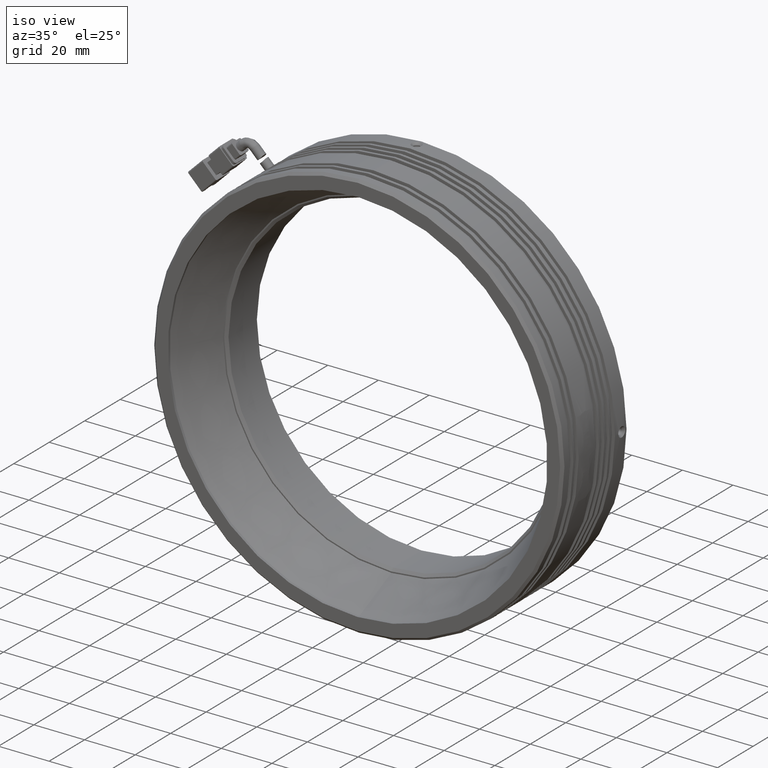
[diagram: clean part render]
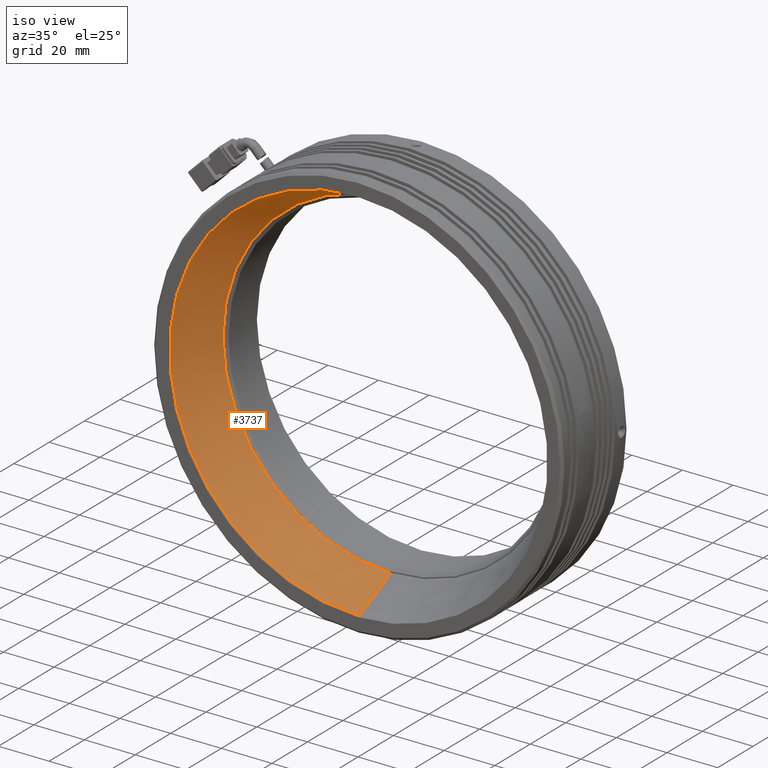
[diagram: same view with one face highlighted and labeled with its STEP entity id]
A machine part, iso view. The second image highlights one B-rep face of the part: STEP entity #3737.
In plain terms, the highlighted conical surface has half-angle 25.278 deg.
Its self-contained STEP definition (entity closure, byte-faithful):
#120 = CARTESIAN_POINT ( 'NONE',  ( -9.785022266880027100, -8.128885628159929800, 75.00000000000000000 ) ) ;
#1035 = ORIENTED_EDGE ( 'NONE', *, *, #9884, .T. ) ;
#1046 = EDGE_LOOP ( 'NONE', ( #6740, #1035, #10707, #8869 ) ) ;
#1540 = DIRECTION ( 'NONE',  ( 0.0000000000000000000, -1.000000000000000000, 0.0000000000000000000 ) ) ;
#2515 = CIRCLE ( 'NONE', #11000, 75.00000000000000000 ) ;
#2528 = DIRECTION ( 'NONE',  ( 0.0000000000000000000, -1.000000000000000000, 0.0000000000000000000 ) ) ;
#2910 = LINE ( 'NONE', #6521, #13234 ) ;
#3236 = DIRECTION ( 'NONE',  ( 5.229319051334347500E-017, -0.9042486467459910400, 0.4270063054078288600 ) ) ;
#3722 = EDGE_CURVE ( 'NONE', #13217, #4231, #2515, .T. ) ;
#3737 = ADVANCED_FACE ( 'NONE', ( #12215 ), #8202, .F. ) ;
#4155 = AXIS2_PLACEMENT_3D ( 'NONE', #5252, #12467, #6296 ) ;
#4231 = VERTEX_POINT ( 'NONE', #11056 ) ;
#4792 = CARTESIAN_POINT ( 'NONE',  ( -9.785022266880027100, 9.871114371840059600, 66.50000000000000000 ) ) ;
#5151 = LINE ( 'NONE', #120, #7596 ) ;
#5252 = CARTESIAN_POINT ( 'NONE',  ( -9.785022266880036000, 9.871114371840059600, 0.0000000000000000000 ) ) ;
#5483 = DIRECTION ( 'NONE',  ( 0.0000000000000000000, 0.0000000000000000000, -1.000000000000000000 ) ) ;
#6296 = DIRECTION ( 'NONE',  ( 0.0000000000000000000, 1.043442692316876500E-016, -1.000000000000000000 ) ) ;
#6521 = CARTESIAN_POINT ( 'NONE',  ( -9.785022266880036000, -8.128885628159929800, -75.00000000000000000 ) ) ;
#6740 = ORIENTED_EDGE ( 'NONE', *, *, #9851, .F. ) ;
#7577 = DIRECTION ( 'NONE',  ( 0.0000000000000000000, -0.9042486467459910400, -0.4270063054078288600 ) ) ;
#7596 = VECTOR ( 'NONE', #3236, 1000.000000000000000 ) ;
#7742 = CARTESIAN_POINT ( 'NONE',  ( -9.785022266880036000, -8.128885628159929800, 0.0000000000000000000 ) ) ;
#7787 = CARTESIAN_POINT ( 'NONE',  ( -9.785022266880036000, -8.128885628159929800, 0.0000000000000000000 ) ) ;
#8202 = CONICAL_SURFACE ( 'NONE', #10553, 75.00000000000000000, 0.4411794804149804500 ) ;
#8777 = DIRECTION ( 'NONE',  ( 0.0000000000000000000, 0.0000000000000000000, -1.000000000000000000 ) ) ;
#8869 = ORIENTED_EDGE ( 'NONE', *, *, #9949, .F. ) ;
#9851 = EDGE_CURVE ( 'NONE', #10713, #13320, #10650, .T. ) ;
#9884 = EDGE_CURVE ( 'NONE', #10713, #13217, #5151, .T. ) ;
#9949 = EDGE_CURVE ( 'NONE', #13320, #4231, #2910, .T. ) ;
#10553 = AXIS2_PLACEMENT_3D ( 'NONE', #7787, #2528, #5483 ) ;
#10650 = CIRCLE ( 'NONE', #4155, 66.50000000000000000 ) ;
#10707 = ORIENTED_EDGE ( 'NONE', *, *, #3722, .T. ) ;
#10713 = VERTEX_POINT ( 'NONE', #4792 ) ;
#11000 = AXIS2_PLACEMENT_3D ( 'NONE', #7742, #1540, #8777 ) ;
#11056 = CARTESIAN_POINT ( 'NONE',  ( -9.785022266880036000, -8.128885628159929800, -75.00000000000000000 ) ) ;
#11484 = CARTESIAN_POINT ( 'NONE',  ( -9.785022266880036000, 9.871114371840066700, -66.50000000000000000 ) ) ;
#12215 = FACE_OUTER_BOUND ( 'NONE', #1046, .T. ) ;
#12306 = CARTESIAN_POINT ( 'NONE',  ( -9.785022266880027100, -8.128885628159929800, 75.00000000000000000 ) ) ;
#12467 = DIRECTION ( 'NONE',  ( -0.0000000000000000000, -1.000000000000000000, -0.0000000000000000000 ) ) ;
#13217 = VERTEX_POINT ( 'NONE', #12306 ) ;
#13234 = VECTOR ( 'NONE', #7577, 1000.000000000000000 ) ;
#13320 = VERTEX_POINT ( 'NONE', #11484 ) ;